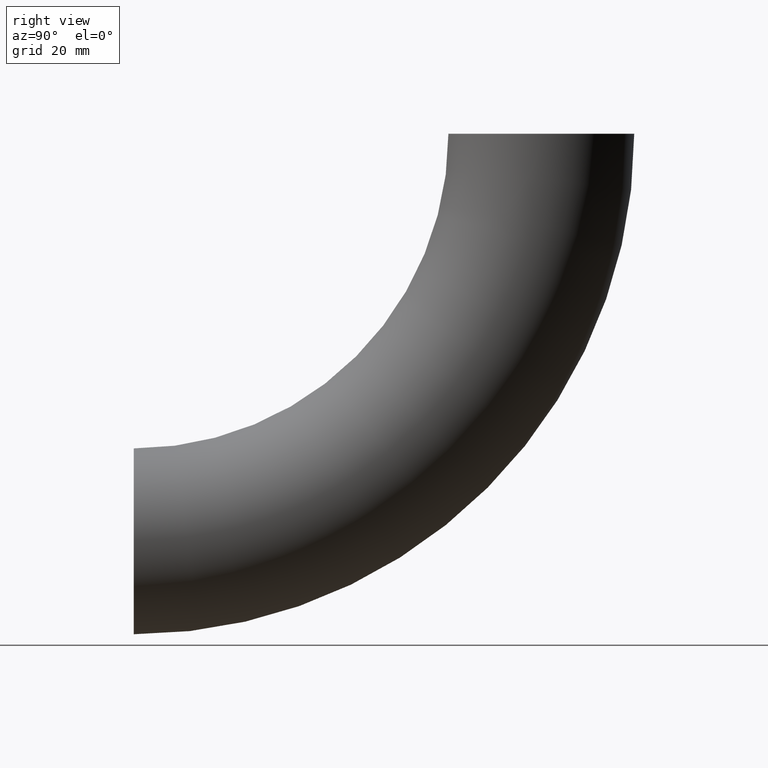
[diagram: clean part render]
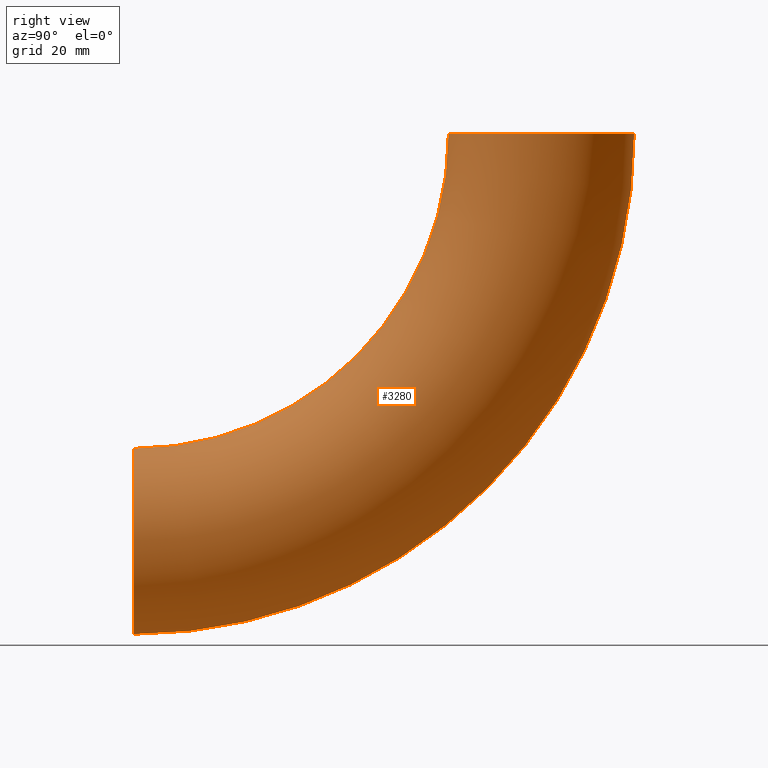
[diagram: same view with one face highlighted and labeled with its STEP entity id]
A machine part, right view. The second image highlights one B-rep face of the part: STEP entity #3280.
In plain terms, the highlighted toroidal blend (fillet) surface has major radius 93 mm and minor (blend) radius 21.2 mm.
Its self-contained STEP definition (entity closure, byte-faithful):
#80 = CIRCLE ( 'NONE', #6783, 114.2000000000000000 ) ;
#102 = CARTESIAN_POINT ( 'NONE',  ( 0.0000000000000000000, 0.0000000000000000000, -71.79999999999999700 ) ) ;
#146 = DIRECTION ( 'NONE',  ( 0.0000000000000000000, 0.0000000000000000000, 1.000000000000000000 ) ) ;
#247 = TOROIDAL_SURFACE ( 'NONE', #5587, 93.00000000000000000, 21.19999999999999600 ) ;
#546 = FACE_OUTER_BOUND ( 'NONE', #9950, .T. ) ;
#949 = EDGE_CURVE ( 'NONE', #10106, #4032, #7686, .T. ) ;
#1587 = CARTESIAN_POINT ( 'NONE',  ( 0.0000000000000000000, 114.2000000000000000, -6.992733223131386300E-015 ) ) ;
#1920 = VERTEX_POINT ( 'NONE', #5893 ) ;
#2144 = CARTESIAN_POINT ( 'NONE',  ( 0.0000000000000000000, 0.0000000000000000000, 0.0000000000000000000 ) ) ;
#2205 = CARTESIAN_POINT ( 'NONE',  ( 0.0000000000000000000, 0.0000000000000000000, -114.2000000000000000 ) ) ;
#2581 = AXIS2_PLACEMENT_3D ( 'NONE', #11355, #2698, #11281 ) ;
#2698 = DIRECTION ( 'NONE',  ( -1.000000000000000000, -0.0000000000000000000, -0.0000000000000000000 ) ) ;
#2868 = AXIS2_PLACEMENT_3D ( 'NONE', #8045, #6206, #7924 ) ;
#3280 = ADVANCED_FACE ( 'NONE', ( #546 ), #247, .T. ) ;
#3730 = DIRECTION ( 'NONE',  ( -1.000000000000000000, -0.0000000000000000000, -0.0000000000000000000 ) ) ;
#3858 = DIRECTION ( 'NONE',  ( -1.000000000000000000, -0.0000000000000000000, -0.0000000000000000000 ) ) ;
#3917 = CIRCLE ( 'NONE', #2581, 71.79999999999999700 ) ;
#3952 = DIRECTION ( 'NONE',  ( 0.0000000000000000000, -1.000000000000000000, 6.123233995736764800E-017 ) ) ;
#4032 = VERTEX_POINT ( 'NONE', #2205 ) ;
#4575 = AXIS2_PLACEMENT_3D ( 'NONE', #11570, #4992, #3952 ) ;
#4622 = ORIENTED_EDGE ( 'NONE', *, *, #949, .T. ) ;
#4634 = EDGE_CURVE ( 'NONE', #6394, #4032, #80, .T. ) ;
#4716 = CARTESIAN_POINT ( 'NONE',  ( 0.0000000000000000000, 0.0000000000000000000, 0.0000000000000000000 ) ) ;
#4992 = DIRECTION ( 'NONE',  ( 0.0000000000000000000, 6.123233995736766000E-017, 1.000000000000000000 ) ) ;
#5587 = AXIS2_PLACEMENT_3D ( 'NONE', #4716, #3730, #7532 ) ;
#5893 = CARTESIAN_POINT ( 'NONE',  ( 0.0000000000000000000, 71.79999999999999700, -4.396482008938998300E-015 ) ) ;
#6122 = ORIENTED_EDGE ( 'NONE', *, *, #8223, .F. ) ;
#6206 = DIRECTION ( 'NONE',  ( 0.0000000000000000000, 1.000000000000000000, 0.0000000000000000000 ) ) ;
#6394 = VERTEX_POINT ( 'NONE', #1587 ) ;
#6783 = AXIS2_PLACEMENT_3D ( 'NONE', #2144, #3858, #146 ) ;
#7532 = DIRECTION ( 'NONE',  ( 0.0000000000000000000, 0.0000000000000000000, 1.000000000000000000 ) ) ;
#7686 = CIRCLE ( 'NONE', #2868, 21.19999999999999600 ) ;
#7924 = DIRECTION ( 'NONE',  ( 0.0000000000000000000, 0.0000000000000000000, 1.000000000000000000 ) ) ;
#8045 = CARTESIAN_POINT ( 'NONE',  ( 0.0000000000000000000, 0.0000000000000000000, -93.00000000000000000 ) ) ;
#8074 = ORIENTED_EDGE ( 'NONE', *, *, #9532, .T. ) ;
#8223 = EDGE_CURVE ( 'NONE', #1920, #6394, #11045, .T. ) ;
#9532 = EDGE_CURVE ( 'NONE', #1920, #10106, #3917, .T. ) ;
#9950 = EDGE_LOOP ( 'NONE', ( #11217, #6122, #8074, #4622 ) ) ;
#10106 = VERTEX_POINT ( 'NONE', #102 ) ;
#11045 = CIRCLE ( 'NONE', #4575, 21.19999999999999600 ) ;
#11217 = ORIENTED_EDGE ( 'NONE', *, *, #4634, .F. ) ;
#11281 = DIRECTION ( 'NONE',  ( 0.0000000000000000000, 0.0000000000000000000, 1.000000000000000000 ) ) ;
#11355 = CARTESIAN_POINT ( 'NONE',  ( 2.596251214192388400E-015, 0.0000000000000000000, 0.0000000000000000000 ) ) ;
#11570 = CARTESIAN_POINT ( 'NONE',  ( 0.0000000000000000000, 93.00000000000000000, -5.694607616035192300E-015 ) ) ;